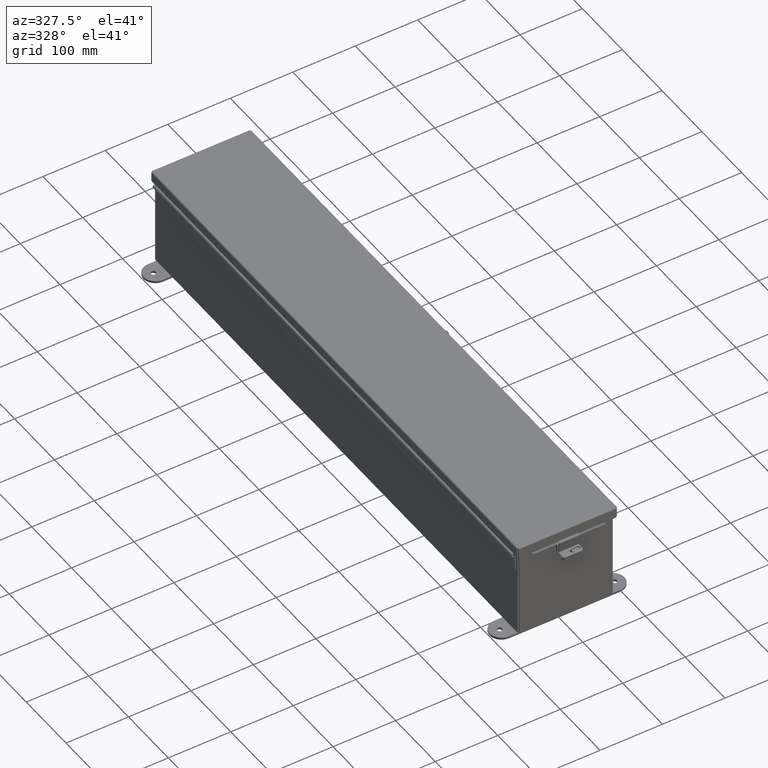
[diagram: clean part render]
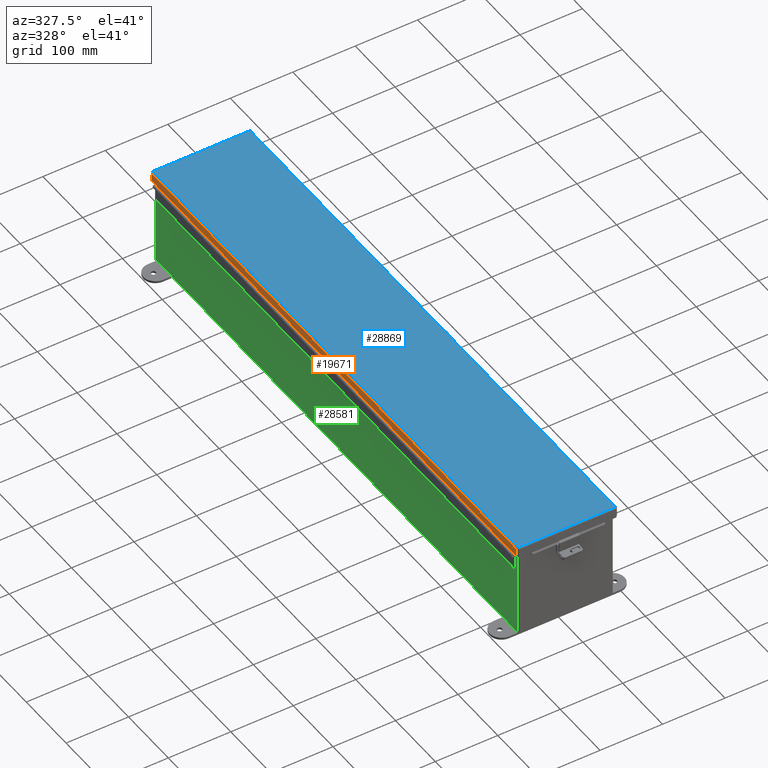
[diagram: same view with three faces highlighted in distinct colors, each labeled with its STEP entity id]
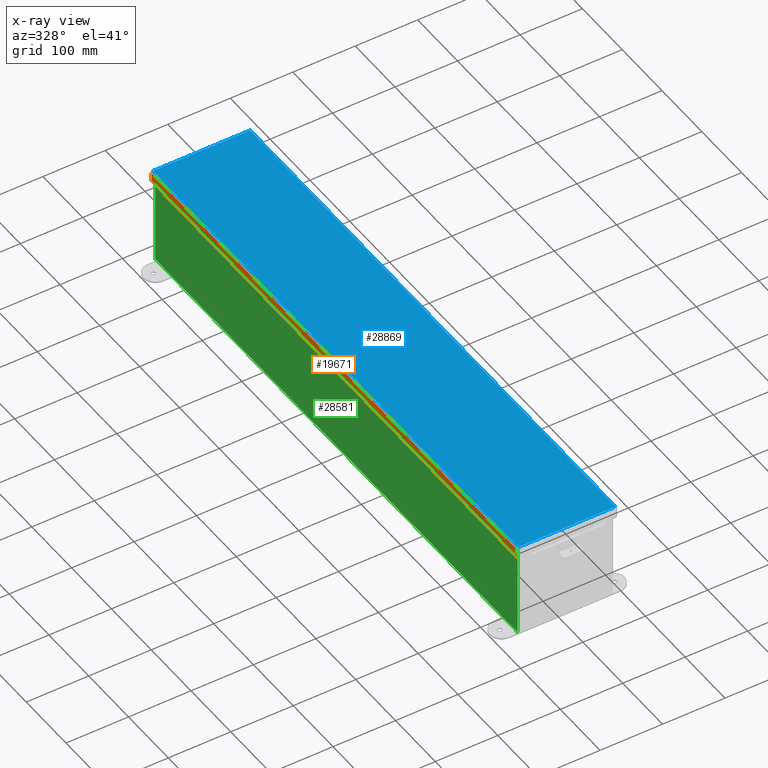
[diagram: x-ray of the same camera — body ghosted, the three highlighted faces saturated]
A machine part, auxiliary view with three faces highlighted in distinct colors.
The next image is the same camera in x-ray (body ghosted, the three faces saturated) — at least one of them is partly hidden behind the body in this view.
Their STEP definitions:

[orange] entity #19671 — the highlighted planar face has unit normal (1, -0, -0).
#531 = CARTESIAN_POINT ( 'NONE',  ( 3.156250000000010200, -18.15624999999997900, 0.01300000000000885000 ) ) ;
#714 = PLANE ( 'NONE',  #21266 ) ;
#1495 = VERTEX_POINT ( 'NONE', #25064 ) ;
#1607 = VECTOR ( 'NONE', #11601, 39.37007874015748100 ) ;
#1695 = VERTEX_POINT ( 'NONE', #15548 ) ;
#2068 = EDGE_CURVE ( 'NONE', #1495, #2404, #27841, .T. ) ;
#2404 = VERTEX_POINT ( 'NONE', #19564 ) ;
#2994 = DIRECTION ( 'NONE',  ( -1.000000000000000000, 7.274792377404991100E-030, 3.971430846686186800E-015 ) ) ;
#3605 = VECTOR ( 'NONE', #8943, 39.37007874015748100 ) ;
#3891 = CARTESIAN_POINT ( 'NONE',  ( 3.156250000000010200, 18.07447893218816000, 0.01300000000000010700 ) ) ;
#5852 = ORIENTED_EDGE ( 'NONE', *, *, #2068, .F. ) ;
#6964 = DIRECTION ( 'NONE',  ( 3.971430846686186800E-015, 8.061172375227182200E-030, 1.000000000000000000 ) ) ;
#7964 = DIRECTION ( 'NONE',  ( 3.971430846686186800E-015, 8.061172375227182200E-030, 1.000000000000000000 ) ) ;
#8943 = DIRECTION ( 'NONE',  ( 7.213517905117213400E-030, -1.000000000000000000, -8.085824278515371000E-030 ) ) ;
#9033 = VECTOR ( 'NONE', #7964, 39.37007874015748100 ) ;
#9530 = EDGE_CURVE ( 'NONE', #23354, #1495, #25836, .T. ) ;
#10295 = ORIENTED_EDGE ( 'NONE', *, *, #24602, .T. ) ;
#11601 = DIRECTION ( 'NONE',  ( 7.213517905117213400E-030, -1.000000000000000000, -8.085824278515371000E-030 ) ) ;
#12086 = ORIENTED_EDGE ( 'NONE', *, *, #9530, .F. ) ;
#13875 = CARTESIAN_POINT ( 'NONE',  ( 3.156250000000010200, 18.07447893218815700, -1.311287036958846300E-014 ) ) ;
#13979 = LINE ( 'NONE', #13875, #17891 ) ;
#14420 = ORIENTED_EDGE ( 'NONE', *, *, #27568, .T. ) ;
#15548 = CARTESIAN_POINT ( 'NONE',  ( 3.156250000000012400, 18.07447893218816000, 0.5502999999999999000 ) ) ;
#17433 = FACE_OUTER_BOUND ( 'NONE', #18843, .T. ) ;
#17891 = VECTOR ( 'NONE', #6964, 39.37007874015748100 ) ;
#18843 = EDGE_LOOP ( 'NONE', ( #12086, #10295, #14420, #5852 ) ) ;
#18983 = DIRECTION ( 'NONE',  ( 3.971430846686186800E-015, 8.061172375227182200E-030, 1.000000000000000000 ) ) ;
#19564 = CARTESIAN_POINT ( 'NONE',  ( 3.156250000000012400, -18.07447893218811100, 0.5502999999999999000 ) ) ;
#19671 = ADVANCED_FACE ( 'NONE', ( #17433 ), #714, .F. ) ;
#21266 = AXIS2_PLACEMENT_3D ( 'NONE', #27953, #2994, #18983 ) ;
#22084 = CARTESIAN_POINT ( 'NONE',  ( 3.156250000000010200, -18.07447893218811100, -1.092739197465705300E-015 ) ) ;
#22508 = LINE ( 'NONE', #24820, #3605 ) ;
#23354 = VERTEX_POINT ( 'NONE', #3891 ) ;
#24602 = EDGE_CURVE ( 'NONE', #23354, #1695, #13979, .T. ) ;
#24820 = CARTESIAN_POINT ( 'NONE',  ( 3.156250000000012400, 2.667820306312757000E-018, 0.5502999999999999000 ) ) ;
#25064 = CARTESIAN_POINT ( 'NONE',  ( 3.156250000000010200, -18.07447893218811100, 0.01299999999999901400 ) ) ;
#25836 = LINE ( 'NONE', #531, #1607 ) ;
#27568 = EDGE_CURVE ( 'NONE', #1695, #2404, #22508, .T. ) ;
#27841 = LINE ( 'NONE', #22084, #9033 ) ;
#27953 = CARTESIAN_POINT ( 'NONE',  ( 3.156250000000010200, 2.667820306312757000E-018, -1.202013117212275700E-014 ) ) ;

[blue] entity #28869 — the highlighted planar face has unit normal (0, 0, 1).
#51 = VECTOR ( 'NONE', #9526, 39.37007874015748100 ) ;
#1529 = LINE ( 'NONE', #15386, #2233 ) ;
#1641 = EDGE_LOOP ( 'NONE', ( #26428, #6676, #22422, #15987 ) ) ;
#1693 = DIRECTION ( 'NONE',  ( 1.000000000000000000, -7.213517905117182500E-030, 1.577721810442017300E-030 ) ) ;
#2233 = VECTOR ( 'NONE', #1693, 39.37007874015748100 ) ;
#5762 = CARTESIAN_POINT ( 'NONE',  ( 3.068550000000010800, -18.06854999999997700, -0.07470000000000015500 ) ) ;
#6676 = ORIENTED_EDGE ( 'NONE', *, *, #9071, .T. ) ;
#6737 = LINE ( 'NONE', #14862, #18203 ) ;
#6805 = LINE ( 'NONE', #23129, #51 ) ;
#9071 = EDGE_CURVE ( 'NONE', #22852, #15459, #13818, .T. ) ;
#9499 = VERTEX_POINT ( 'NONE', #25393 ) ;
#9526 = DIRECTION ( 'NONE',  ( -1.000000000000000000, 7.213517905117182500E-030, -1.577721810442017300E-030 ) ) ;
#10208 = DIRECTION ( 'NONE',  ( 7.213517905117213400E-030, -1.000000000000000000, -8.085824278515371000E-030 ) ) ;
#11457 = DIRECTION ( 'NONE',  ( -1.000000000000000000, 7.213517905117183900E-030, -1.577721810442017300E-030 ) ) ;
#11721 = EDGE_CURVE ( 'NONE', #9499, #22852, #1529, .T. ) ;
#12489 = FACE_OUTER_BOUND ( 'NONE', #1641, .T. ) ;
#13094 = VECTOR ( 'NONE', #10208, 39.37007874015748100 ) ;
#13572 = CARTESIAN_POINT ( 'NONE',  ( -3.068550000000009000, -18.06854999999998100, -0.07469999999999907300 ) ) ;
#13653 = EDGE_CURVE ( 'NONE', #16568, #9499, #6737, .T. ) ;
#13818 = LINE ( 'NONE', #21563, #13094 ) ;
#14225 = AXIS2_PLACEMENT_3D ( 'NONE', #15955, #25047, #11457 ) ;
#14862 = CARTESIAN_POINT ( 'NONE',  ( -3.068550000000009000, -18.07447893218811100, -0.07469999999999907300 ) ) ;
#15386 = CARTESIAN_POINT ( 'NONE',  ( -3.074478932188143600, 18.06855000000002300, -0.07470000000000015500 ) ) ;
#15459 = VERTEX_POINT ( 'NONE', #5762 ) ;
#15955 = CARTESIAN_POINT ( 'NONE',  ( 0.0000000000000000000, 0.0000000000000000000, -0.07470000000000015500 ) ) ;
#15987 = ORIENTED_EDGE ( 'NONE', *, *, #13653, .T. ) ;
#16568 = VERTEX_POINT ( 'NONE', #13572 ) ;
#17170 = DIRECTION ( 'NONE',  ( -7.213517905117213400E-030, 1.000000000000000000, 8.085824278515371000E-030 ) ) ;
#18203 = VECTOR ( 'NONE', #17170, 39.37007874015748100 ) ;
#20287 = CARTESIAN_POINT ( 'NONE',  ( 3.068550000000009900, 18.06855000000002300, -0.07470000000000015500 ) ) ;
#20524 = PLANE ( 'NONE',  #14225 ) ;
#21563 = CARTESIAN_POINT ( 'NONE',  ( 3.068550000000009900, 18.07447893218816000, -0.07470000000000015500 ) ) ;
#22422 = ORIENTED_EDGE ( 'NONE', *, *, #27706, .T. ) ;
#22852 = VERTEX_POINT ( 'NONE', #20287 ) ;
#23129 = CARTESIAN_POINT ( 'NONE',  ( 3.074478932188144900, -18.06854999999997700, -0.07470000000000015500 ) ) ;
#25047 = DIRECTION ( 'NONE',  ( 1.577721810442017300E-030, -8.061172375227183600E-030, -1.000000000000000000 ) ) ;
#25393 = CARTESIAN_POINT ( 'NONE',  ( -3.068550000000009400, 18.06855000000002300, -0.07470000000000015500 ) ) ;
#26428 = ORIENTED_EDGE ( 'NONE', *, *, #11721, .T. ) ;
#27706 = EDGE_CURVE ( 'NONE', #15459, #16568, #6805, .T. ) ;
#28869 = ADVANCED_FACE ( 'NONE', ( #12489 ), #20524, .T. ) ;

[green] entity #28581 — the highlighted planar face has unit normal (1, 0, 0).
#193 = VECTOR ( 'NONE', #10563, 39.37007874015748100 ) ;
#990 = CARTESIAN_POINT ( 'NONE',  ( -2.999999999999999600, 0.0000000000000000000, -1.062859610035002400E-014 ) ) ;
#999 = AXIS2_PLACEMENT_3D ( 'NONE', #990, #1087, #17078 ) ;
#1087 = DIRECTION ( 'NONE',  ( 1.000000000000000000, 0.0000000000000000000, 3.455316574900958600E-015 ) ) ;
#2173 = EDGE_CURVE ( 'NONE', #7009, #19691, #7597, .T. ) ;
#2638 = ORIENTED_EDGE ( 'NONE', *, *, #3426, .T. ) ;
#3115 = VECTOR ( 'NONE', #11715, 39.37007874015748100 ) ;
#3426 = EDGE_CURVE ( 'NONE', #19356, #29179, #7159, .T. ) ;
#3458 = CARTESIAN_POINT ( 'NONE',  ( -2.999999999999999600, 17.92530000000000000, -1.062859610035002400E-014 ) ) ;
#5566 = PLANE ( 'NONE',  #999 ) ;
#5955 = CARTESIAN_POINT ( 'NONE',  ( -3.000000000000020000, -17.92530000000000000, 5.837599999999999200 ) ) ;
#6237 = LINE ( 'NONE', #5955, #193 ) ;
#7009 = VERTEX_POINT ( 'NONE', #26281 ) ;
#7159 = LINE ( 'NONE', #27758, #7882 ) ;
#7597 = LINE ( 'NONE', #3458, #12252 ) ;
#7882 = VECTOR ( 'NONE', #23496, 39.37007874015748100 ) ;
#8046 = CARTESIAN_POINT ( 'NONE',  ( -3.000000000000020000, -17.92529999999998900, 5.837599999999999200 ) ) ;
#8993 = ORIENTED_EDGE ( 'NONE', *, *, #22068, .T. ) ;
#10563 = DIRECTION ( 'NONE',  ( 0.0000000000000000000, 1.000000000000000000, 0.0000000000000000000 ) ) ;
#11715 = DIRECTION ( 'NONE',  ( -1.579789401452370800E-031, 1.000000000000000000, 4.572054013596867700E-017 ) ) ;
#12252 = VECTOR ( 'NONE', #26427, 39.37007874015748100 ) ;
#14564 = LINE ( 'NONE', #27573, #3115 ) ;
#14728 = EDGE_CURVE ( 'NONE', #19356, #19691, #14564, .T. ) ;
#17078 = DIRECTION ( 'NONE',  ( 3.455316574900958600E-015, 0.0000000000000000000, -1.000000000000000000 ) ) ;
#17722 = CARTESIAN_POINT ( 'NONE',  ( -2.999999999999999600, -17.92530000000000000, 0.01299999999999820400 ) ) ;
#18913 = FACE_OUTER_BOUND ( 'NONE', #28994, .T. ) ;
#19356 = VERTEX_POINT ( 'NONE', #17722 ) ;
#19691 = VERTEX_POINT ( 'NONE', #25796 ) ;
#22068 = EDGE_CURVE ( 'NONE', #29179, #7009, #6237, .T. ) ;
#22194 = ORIENTED_EDGE ( 'NONE', *, *, #2173, .T. ) ;
#23496 = DIRECTION ( 'NONE',  ( -3.455316574900958600E-015, 3.735477378271307500E-016, 1.000000000000000000 ) ) ;
#25734 = ORIENTED_EDGE ( 'NONE', *, *, #14728, .F. ) ;
#25796 = CARTESIAN_POINT ( 'NONE',  ( -2.999999999999999600, 17.92530000000000000, 0.01300000000000050800 ) ) ;
#26281 = CARTESIAN_POINT ( 'NONE',  ( -3.000000000000020000, 17.92530000000000000, 5.837599999999999200 ) ) ;
#26427 = DIRECTION ( 'NONE',  ( 3.455316574900958600E-015, 0.0000000000000000000, -1.000000000000000000 ) ) ;
#27573 = CARTESIAN_POINT ( 'NONE',  ( -2.999999999999999600, 17.92530000000000000, 0.01299999999999984300 ) ) ;
#27758 = CARTESIAN_POINT ( 'NONE',  ( -2.999999999999999600, -17.92530000000000000, -3.927031490892378400E-015 ) ) ;
#28581 = ADVANCED_FACE ( 'NONE', ( #18913 ), #5566, .F. ) ;
#28994 = EDGE_LOOP ( 'NONE', ( #8993, #22194, #25734, #2638 ) ) ;
#29179 = VERTEX_POINT ( 'NONE', #8046 ) ;